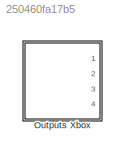
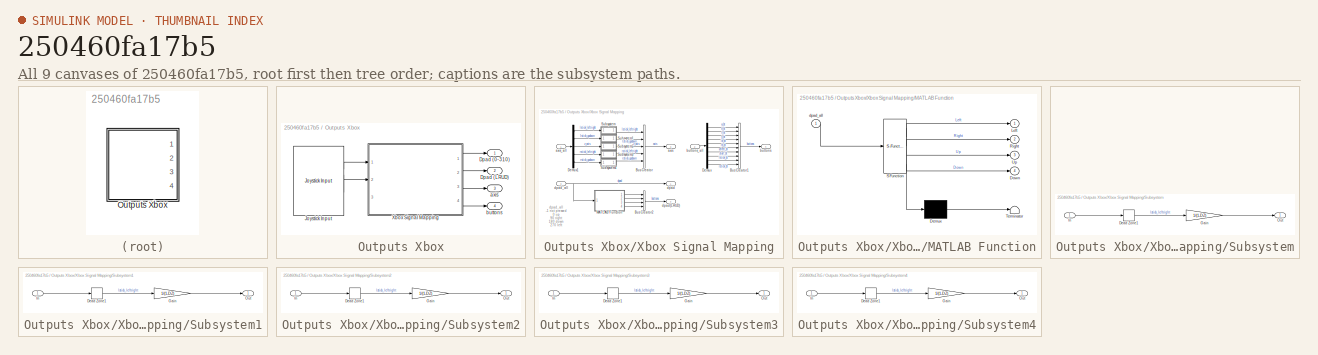
[diagram: thumbnail index - all 9 canvases of the model, root first then tree order]
MODEL slx_250460fa17b5
KIND library
CONFIG AbsTol = auto
CONFIG EnableMultiTasking = off
CONFIG FixedStep = auto
CONFIG MaxStep = auto
CONFIG MinStep = auto
CONFIG RelTol = 1e-3
CONFIG SampleTimeConstraint = Unconstrained
CONFIG SolverName = VariableStepAuto
CONFIG StartTime = 0.0
CONFIG StopTime = 10.0
BLOCK [SubSystem] Outputs Xbox
  Ports = [0, 4]
  RequestExecContextInheritance = off
BLOCK [Outport] Outputs Xbox/Dpad (0-310)
  VectorParamsAs1DForOutWhenUnconnected = off
BLOCK [Outport] Outputs Xbox/Dpad (LRUD)
  Port = 2
  VectorParamsAs1DForOutWhenUnconnected = off
BLOCK [Reference] Outputs Xbox/Joystick Input  REF=vrlib/Joystick Input
  Ports = [0, 2]
  SourceBlock = vrlib/Joystick Input
  SourceProductBaseCode = SL
  SourceType = Joystick Input
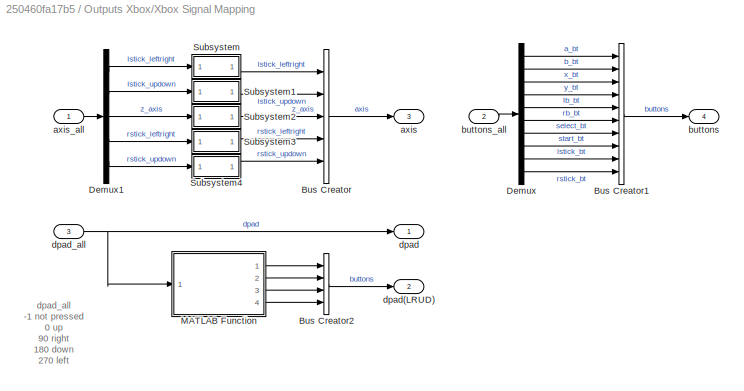
BLOCK [SubSystem] Outputs Xbox/Xbox Signal Mapping
  Ports = [3, 4]
  RequestExecContextInheritance = off
BLOCK [BusCreator] Outputs Xbox/Xbox Signal Mapping/Bus Creator
  DisplayOption = bar
  InheritFromInputs = on
  Inputs = 5
  Ports = [5, 1]
BLOCK [BusCreator] Outputs Xbox/Xbox Signal Mapping/Bus Creator1
  DisplayOption = bar
  InheritFromInputs = on
  Inputs = 10
  Ports = [10, 1]
BLOCK [BusCreator] Outputs Xbox/Xbox Signal Mapping/Bus Creator2
  DisplayOption = bar
  InheritFromInputs = on
  Inputs = 4
  Ports = [4, 1]
BLOCK [Demux] Outputs Xbox/Xbox Signal Mapping/Demux
  Outputs = 10
  Ports = [1, 10]
BLOCK [Demux] Outputs Xbox/Xbox Signal Mapping/Demux1
  Outputs = 5
  Ports = [1, 5]
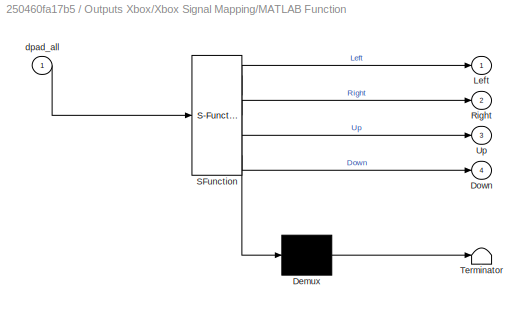
BLOCK [SubSystem] Outputs Xbox/Xbox Signal Mapping/MATLAB Function
  ErrorFcn = Stateflow.Translate.translate
  PermitHierarchicalResolution = ExplicitOnly
  Ports = [1, 4]
  RequestExecContextInheritance = off
  SFBlockType = MATLAB Function
  TreatAsAtomicUnit = on
BLOCK [Demux] Outputs Xbox/Xbox Signal Mapping/MATLAB Function/ Demux 
  Outputs = 1
  Ports = [1, 1]
BLOCK [S-Function] Outputs Xbox/Xbox Signal Mapping/MATLAB Function/ SFunction 
  EnableBusSupport = off
  FunctionName = sf_sfun
  PortCounts = [1 5]
  Ports = [1, 5]
  SFcnIsStateOwnerBlock = off
  SFunctionDeploymentMode = off
  Tag = Stateflow S-Function 2
BLOCK [Terminator] Outputs Xbox/Xbox Signal Mapping/MATLAB Function/ Terminator 
BLOCK [Outport] Outputs Xbox/Xbox Signal Mapping/MATLAB Function/Down
  Port = 4
  VectorParamsAs1DForOutWhenUnconnected = off
BLOCK [Outport] Outputs Xbox/Xbox Signal Mapping/MATLAB Function/Left
  VectorParamsAs1DForOutWhenUnconnected = off
BLOCK [Outport] Outputs Xbox/Xbox Signal Mapping/MATLAB Function/Right
  Port = 2
  VectorParamsAs1DForOutWhenUnconnected = off
BLOCK [Outport] Outputs Xbox/Xbox Signal Mapping/MATLAB Function/Up
  Port = 3
  VectorParamsAs1DForOutWhenUnconnected = off
BLOCK [Inport] Outputs Xbox/Xbox Signal Mapping/MATLAB Function/dpad_all
BLOCK [SubSystem] Outputs Xbox/Xbox Signal Mapping/Subsystem
  Ports = [1, 1]
  RequestExecContextInheritance = off
BLOCK [DeadZone] Outputs Xbox/Xbox Signal Mapping/Subsystem/Dead Zone1
  LowerValue = -DZ
  UpperValue = DZ
BLOCK [Gain] Outputs Xbox/Xbox Signal Mapping/Subsystem/Gain
  Gain = 1/(1-DZ)
BLOCK [Inport] Outputs Xbox/Xbox Signal Mapping/Subsystem/In
BLOCK [Outport] Outputs Xbox/Xbox Signal Mapping/Subsystem/Out
  VectorParamsAs1DForOutWhenUnconnected = off
BLOCK [SubSystem] Outputs Xbox/Xbox Signal Mapping/Subsystem1
  Ports = [1, 1]
  RequestExecContextInheritance = off
BLOCK [DeadZone] Outputs Xbox/Xbox Signal Mapping/Subsystem1/Dead Zone1
  LowerValue = -DZ
  UpperValue = DZ
BLOCK [Gain] Outputs Xbox/Xbox Signal Mapping/Subsystem1/Gain
  Gain = 1/(1-DZ)
BLOCK [Inport] Outputs Xbox/Xbox Signal Mapping/Subsystem1/In
BLOCK [Outport] Outputs Xbox/Xbox Signal Mapping/Subsystem1/Out
  VectorParamsAs1DForOutWhenUnconnected = off
BLOCK [SubSystem] Outputs Xbox/Xbox Signal Mapping/Subsystem2
  Ports = [1, 1]
  RequestExecContextInheritance = off
BLOCK [DeadZone] Outputs Xbox/Xbox Signal Mapping/Subsystem2/Dead Zone1
  LowerValue = -DZ
  UpperValue = DZ
BLOCK [Gain] Outputs Xbox/Xbox Signal Mapping/Subsystem2/Gain
  Gain = 1/(1-DZ)
BLOCK [Inport] Outputs Xbox/Xbox Signal Mapping/Subsystem2/In
BLOCK [Outport] Outputs Xbox/Xbox Signal Mapping/Subsystem2/Out
  VectorParamsAs1DForOutWhenUnconnected = off
BLOCK [SubSystem] Outputs Xbox/Xbox Signal Mapping/Subsystem3
  Ports = [1, 1]
  RequestExecContextInheritance = off
BLOCK [DeadZone] Outputs Xbox/Xbox Signal Mapping/Subsystem3/Dead Zone1
  LowerValue = -DZ
  UpperValue = DZ
BLOCK [Gain] Outputs Xbox/Xbox Signal Mapping/Subsystem3/Gain
  Gain = 1/(1-DZ)
BLOCK [Inport] Outputs Xbox/Xbox Signal Mapping/Subsystem3/In
BLOCK [Outport] Outputs Xbox/Xbox Signal Mapping/Subsystem3/Out
  VectorParamsAs1DForOutWhenUnconnected = off
BLOCK [SubSystem] Outputs Xbox/Xbox Signal Mapping/Subsystem4
  Ports = [1, 1]
  RequestExecContextInheritance = off
BLOCK [DeadZone] Outputs Xbox/Xbox Signal Mapping/Subsystem4/Dead Zone1
  LowerValue = -DZ
  UpperValue = DZ
BLOCK [Gain] Outputs Xbox/Xbox Signal Mapping/Subsystem4/Gain
  Gain = 1/(1-DZ)
BLOCK [Inport] Outputs Xbox/Xbox Signal Mapping/Subsystem4/In
BLOCK [Outport] Outputs Xbox/Xbox Signal Mapping/Subsystem4/Out
  VectorParamsAs1DForOutWhenUnconnected = off
BLOCK [Outport] Outputs Xbox/Xbox Signal Mapping/axis
  Port = 3
  PortDimensions = 5
  SignalType = real
  Unit = 1
  VarSizeSig = No
  VectorParamsAs1DForOutWhenUnconnected = off
BLOCK [Inport] Outputs Xbox/Xbox Signal Mapping/axis_all
BLOCK [Outport] Outputs Xbox/Xbox Signal Mapping/buttons
  Port = 4
  PortDimensions = 10
  SignalType = real
  Unit = 1
  VarSizeSig = No
  VectorParamsAs1DForOutWhenUnconnected = off
BLOCK [Inport] Outputs Xbox/Xbox Signal Mapping/buttons_all
  Port = 2
BLOCK [Outport] Outputs Xbox/Xbox Signal Mapping/dpad
  OutMax = 360
  OutMin = -1
  PortDimensions = 1
  SignalType = real
  Unit = 1
  VarSizeSig = No
  VectorParamsAs1DForOutWhenUnconnected = off
BLOCK [Outport] Outputs Xbox/Xbox Signal Mapping/dpad(LRUD)
  Port = 2
  VectorParamsAs1DForOutWhenUnconnected = off
BLOCK [Inport] Outputs Xbox/Xbox Signal Mapping/dpad_all
  Port = 3
BLOCK [Outport] Outputs Xbox/axis
  Port = 3
  VectorParamsAs1DForOutWhenUnconnected = off
BLOCK [Outport] Outputs Xbox/buttons
  Port = 4
  VectorParamsAs1DForOutWhenUnconnected = off
ANNOTATION Outputs Xbox/Xbox Signal Mapping: dpad_all -1 not pressed 0 up 90 right 180 down 270 left
LINE Outputs Xbox/Joystick Input:1 -> Outputs Xbox/Xbox Signal Mapping:1
LINE Outputs Xbox/Joystick Input:2 -> Outputs Xbox/Xbox Signal Mapping:2
LINE Outputs Xbox/Xbox Signal Mapping/Bus Creator1:1 -> Outputs Xbox/Xbox Signal Mapping/buttons:1
LINE Outputs Xbox/Xbox Signal Mapping/Bus Creator2:1 -> Outputs Xbox/Xbox Signal Mapping/dpad(LRUD):1
LINE Outputs Xbox/Xbox Signal Mapping/Bus Creator:1 -> Outputs Xbox/Xbox Signal Mapping/axis:1
LINE Outputs Xbox/Xbox Signal Mapping/Demux1:1 -> Outputs Xbox/Xbox Signal Mapping/Subsystem:1
LINE Outputs Xbox/Xbox Signal Mapping/Demux1:2 -> Outputs Xbox/Xbox Signal Mapping/Subsystem1:1
LINE Outputs Xbox/Xbox Signal Mapping/Demux1:3 -> Outputs Xbox/Xbox Signal Mapping/Subsystem2:1
LINE Outputs Xbox/Xbox Signal Mapping/Demux1:4 -> Outputs Xbox/Xbox Signal Mapping/Subsystem3:1
LINE Outputs Xbox/Xbox Signal Mapping/Demux1:5 -> Outputs Xbox/Xbox Signal Mapping/Subsystem4:1
LINE Outputs Xbox/Xbox Signal Mapping/Demux:1 -> Outputs Xbox/Xbox Signal Mapping/Bus Creator1:1
LINE Outputs Xbox/Xbox Signal Mapping/Demux:10 -> Outputs Xbox/Xbox Signal Mapping/Bus Creator1:10
LINE Outputs Xbox/Xbox Signal Mapping/Demux:2 -> Outputs Xbox/Xbox Signal Mapping/Bus Creator1:2
LINE Outputs Xbox/Xbox Signal Mapping/Demux:3 -> Outputs Xbox/Xbox Signal Mapping/Bus Creator1:3
LINE Outputs Xbox/Xbox Signal Mapping/Demux:4 -> Outputs Xbox/Xbox Signal Mapping/Bus Creator1:4
LINE Outputs Xbox/Xbox Signal Mapping/Demux:5 -> Outputs Xbox/Xbox Signal Mapping/Bus Creator1:5
LINE Outputs Xbox/Xbox Signal Mapping/Demux:6 -> Outputs Xbox/Xbox Signal Mapping/Bus Creator1:6
LINE Outputs Xbox/Xbox Signal Mapping/Demux:7 -> Outputs Xbox/Xbox Signal Mapping/Bus Creator1:7
LINE Outputs Xbox/Xbox Signal Mapping/Demux:8 -> Outputs Xbox/Xbox Signal Mapping/Bus Creator1:8
LINE Outputs Xbox/Xbox Signal Mapping/Demux:9 -> Outputs Xbox/Xbox Signal Mapping/Bus Creator1:9
LINE Outputs Xbox/Xbox Signal Mapping/MATLAB Function:1 -> Outputs Xbox/Xbox Signal Mapping/Bus Creator2:1
LINE Outputs Xbox/Xbox Signal Mapping/MATLAB Function:2 -> Outputs Xbox/Xbox Signal Mapping/Bus Creator2:2
LINE Outputs Xbox/Xbox Signal Mapping/MATLAB Function:3 -> Outputs Xbox/Xbox Signal Mapping/Bus Creator2:3
LINE Outputs Xbox/Xbox Signal Mapping/MATLAB Function:4 -> Outputs Xbox/Xbox Signal Mapping/Bus Creator2:4
LINE Outputs Xbox/Xbox Signal Mapping/Subsystem/Dead Zone1:1 -> Outputs Xbox/Xbox Signal Mapping/Subsystem/Gain:1
LINE Outputs Xbox/Xbox Signal Mapping/Subsystem/Gain:1 -> Outputs Xbox/Xbox Signal Mapping/Subsystem/Out:1
LINE Outputs Xbox/Xbox Signal Mapping/Subsystem/In:1 -> Outputs Xbox/Xbox Signal Mapping/Subsystem/Dead Zone1:1
LINE Outputs Xbox/Xbox Signal Mapping/Subsystem1/Dead Zone1:1 -> Outputs Xbox/Xbox Signal Mapping/Subsystem1/Gain:1
LINE Outputs Xbox/Xbox Signal Mapping/Subsystem1/Gain:1 -> Outputs Xbox/Xbox Signal Mapping/Subsystem1/Out:1
LINE Outputs Xbox/Xbox Signal Mapping/Subsystem1/In:1 -> Outputs Xbox/Xbox Signal Mapping/Subsystem1/Dead Zone1:1
LINE Outputs Xbox/Xbox Signal Mapping/Subsystem1:1 -> Outputs Xbox/Xbox Signal Mapping/Bus Creator:2
LINE Outputs Xbox/Xbox Signal Mapping/Subsystem2/Dead Zone1:1 -> Outputs Xbox/Xbox Signal Mapping/Subsystem2/Gain:1
LINE Outputs Xbox/Xbox Signal Mapping/Subsystem2/Gain:1 -> Outputs Xbox/Xbox Signal Mapping/Subsystem2/Out:1
LINE Outputs Xbox/Xbox Signal Mapping/Subsystem2/In:1 -> Outputs Xbox/Xbox Signal Mapping/Subsystem2/Dead Zone1:1
LINE Outputs Xbox/Xbox Signal Mapping/Subsystem2:1 -> Outputs Xbox/Xbox Signal Mapping/Bus Creator:3
LINE Outputs Xbox/Xbox Signal Mapping/Subsystem3/Dead Zone1:1 -> Outputs Xbox/Xbox Signal Mapping/Subsystem3/Gain:1
LINE Outputs Xbox/Xbox Signal Mapping/Subsystem3/Gain:1 -> Outputs Xbox/Xbox Signal Mapping/Subsystem3/Out:1
LINE Outputs Xbox/Xbox Signal Mapping/Subsystem3/In:1 -> Outputs Xbox/Xbox Signal Mapping/Subsystem3/Dead Zone1:1
LINE Outputs Xbox/Xbox Signal Mapping/Subsystem3:1 -> Outputs Xbox/Xbox Signal Mapping/Bus Creator:4
LINE Outputs Xbox/Xbox Signal Mapping/Subsystem4/Dead Zone1:1 -> Outputs Xbox/Xbox Signal Mapping/Subsystem4/Gain:1
LINE Outputs Xbox/Xbox Signal Mapping/Subsystem4/Gain:1 -> Outputs Xbox/Xbox Signal Mapping/Subsystem4/Out:1
LINE Outputs Xbox/Xbox Signal Mapping/Subsystem4/In:1 -> Outputs Xbox/Xbox Signal Mapping/Subsystem4/Dead Zone1:1
LINE Outputs Xbox/Xbox Signal Mapping/Subsystem4:1 -> Outputs Xbox/Xbox Signal Mapping/Bus Creator:5
LINE Outputs Xbox/Xbox Signal Mapping/Subsystem:1 -> Outputs Xbox/Xbox Signal Mapping/Bus Creator:1
LINE Outputs Xbox/Xbox Signal Mapping/axis_all:1 -> Outputs Xbox/Xbox Signal Mapping/Demux1:1
LINE Outputs Xbox/Xbox Signal Mapping/buttons_all:1 -> Outputs Xbox/Xbox Signal Mapping/Demux:1
NET Outputs Xbox/Xbox Signal Mapping/dpad_all:1 -> Outputs Xbox/Xbox Signal Mapping/MATLAB Function:1, Outputs Xbox/Xbox Signal Mapping/dpad:1
LINE Outputs Xbox/Xbox Signal Mapping:1 -> Outputs Xbox/Dpad (0-310):1
LINE Outputs Xbox/Xbox Signal Mapping:2 -> Outputs Xbox/Dpad (LRUD):1
LINE Outputs Xbox/Xbox Signal Mapping:3 -> Outputs Xbox/axis:1
LINE Outputs Xbox/Xbox Signal Mapping:4 -> Outputs Xbox/buttons:1
note: NET lines group one-source signal fan-out (src -> all destinations, sorted); 1:1 wires keep LINE
CHART Outputs Xbox/Xbox Signal Mapping/MATLAB Function states=1 transitions=1
  STATE_LABEL 'eML_blk_kernel()'
  STATE_LABEL 'SCRIPT:\nfunction [Left,Right,Up,Down] = dpad(dpad_all)\n\nif dpad_all == -1\n    Left = 0;\n    Right = 0;\n    Up = 0;\n    Down = 0;\n   \nelseif dpad_all == 270\n    Left = 1;\n    Right = 0;\n    Up = 0;\n    Down = 0;\n    \nelseif dpad_all == 0\n    Left = 0;\n    Right = 0;\n    Up = 1;\n    Down = 0;\n    \nelseif dpad_all == 90\n    Left = 0;\n    Right = 1;\n    Up = 0;\n    Down = 0;\n    \nelseif dpad_all == 18...<+491ch>'
CHART  states=0 transitions=0
